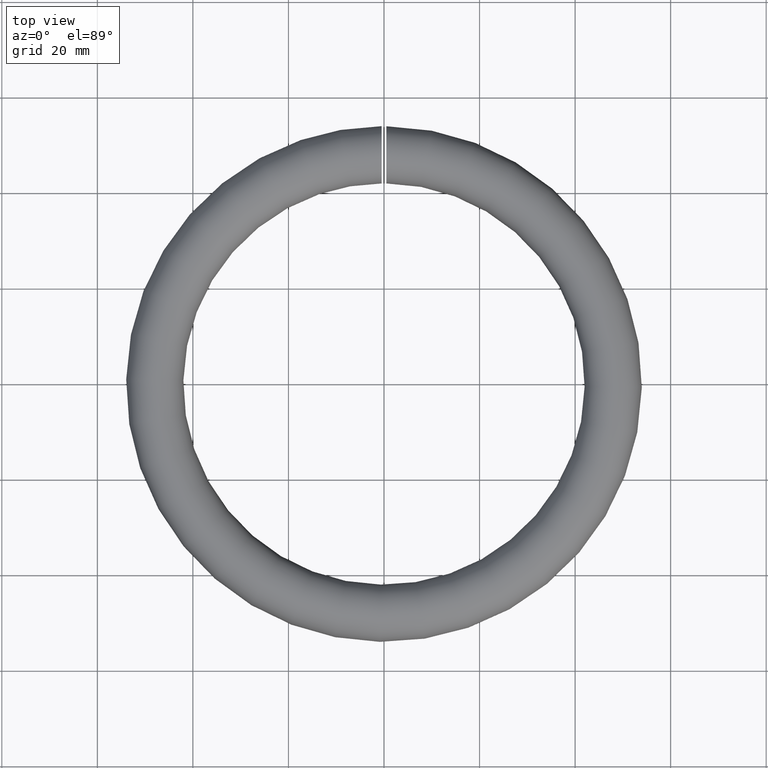
[diagram: clean part render]
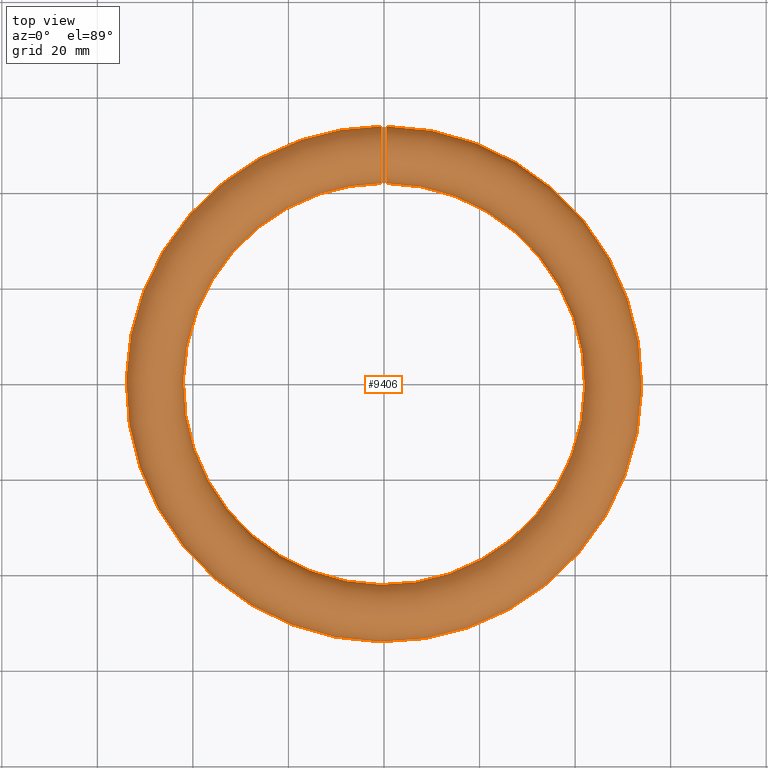
[diagram: same view with one face highlighted and labeled with its STEP entity id]
A machine part, top view. The second image highlights one B-rep face of the part: STEP entity #9406.
In plain terms, the highlighted toroidal blend (fillet) surface has major radius 48 mm and minor (blend) radius 6 mm.
Its self-contained STEP definition (entity closure, byte-faithful):
#46 = CARTESIAN_POINT ( 'NONE',  ( -0.4999999999999998900, 43.14301358841298400, -3.548935305719429100 ) ) ;
#92 = CARTESIAN_POINT ( 'NONE',  ( 0.5000000000000001100, 47.07987021014656600, -5.942343067271855800 ) ) ;
#128 = CARTESIAN_POINT ( 'NONE',  ( 0.5000000000000000000, 48.92092640781388700, 5.941396929851678400 ) ) ;
#168 = CARTESIAN_POINT ( 'NONE',  ( 0.5000000000000001100, 53.13334587488477500, -3.127150625172909300 ) ) ;
#198 = CARTESIAN_POINT ( 'NONE',  ( 0.5000000000000000000, 53.86589599565677800, -1.310308632446923500 ) ) ;
#230 = CARTESIAN_POINT ( 'NONE',  ( 0.4999999999999998900, 53.94197766748690300, 0.8387799097022394800 ) ) ;
#243 = ORIENTED_EDGE ( 'NONE', *, *, #438, .T. ) ;
#250 = CARTESIAN_POINT ( 'NONE',  ( -0.4999999999999998900, 44.88123695747643200, -5.142314771518775800 ) ) ;
#295 = CARTESIAN_POINT ( 'NONE',  ( -0.4999999999999998900, 52.91392091421100500, -3.445150536091677200 ) ) ;
#333 = CARTESIAN_POINT ( 'NONE',  ( -0.5000000000000000000, 53.22983944082128700, -2.943260673869156500 ) ) ;
#371 = CARTESIAN_POINT ( 'NONE',  ( -0.5000000000000000000, 43.56819923741991800, 4.066995888064344200 ) ) ;
#409 = CARTESIAN_POINT ( 'NONE',  ( -0.5000000000000000000, 51.44738861552011900, 4.924667876573747300 ) ) ;
#438 = EDGE_CURVE ( 'NONE', #7773, #7773, #4877, .T. ) ;
#856 = CARTESIAN_POINT ( 'NONE',  ( 0.4999999999999998900, 44.87728180184381400, -5.128820400686970900 ) ) ;
#927 = CARTESIAN_POINT ( 'NONE',  ( -0.4999999999999998900, 41.98987976272094600, -0.2607269188843543400 ) ) ;
#951 = FACE_OUTER_BOUND ( 'NONE', #8761, .T. ) ;
#964 = CARTESIAN_POINT ( 'NONE',  ( -0.4999999999999998900, 42.66840515462433100, 2.778428479248743300 ) ) ;
#971 = CARTESIAN_POINT ( 'NONE',  ( 0.5000000000000002200, 44.54767000088210700, -4.913202977284899300 ) ) ;
#1002 = EDGE_LOOP ( 'NONE', ( #243 ) ) ;
#1011 = CARTESIAN_POINT ( 'NONE',  ( 0.4999999999999996700, 51.54770593902862400, -4.852801359138823000 ) ) ;
#1048 = CARTESIAN_POINT ( 'NONE',  ( 0.4999999999999998900, 52.42763166699523900, -4.065570252330453500 ) ) ;
#1082 = CARTESIAN_POINT ( 'NONE',  ( 0.5000000000000000000, 49.41977067379738700, -5.832291564082732200 ) ) ;
#1119 = CARTESIAN_POINT ( 'NONE',  ( 0.5000000000000001100, 43.20238332301784100, 3.612313738947398700 ) ) ;
#1140 = CARTESIAN_POINT ( 'NONE',  ( -0.5000000000000000000, 53.64735988820179100, -2.057928835842074600 ) ) ;
#1161 = CARTESIAN_POINT ( 'NONE',  ( 0.5000000000000000000, 53.63697089731634500, -2.058427523300206700 ) ) ;
#1182 = CARTESIAN_POINT ( 'NONE',  ( -0.5000000000000000000, 53.06826291758442700, 3.231752764247573400 ) ) ;
#1200 = CARTESIAN_POINT ( 'NONE',  ( 0.5000000000000000000, 41.98923159459464200, -0.2481899549273053100 ) ) ;
#1221 = CARTESIAN_POINT ( 'NONE',  ( -0.5000000000000000000, 42.86594377259069000, 3.116074573703075900 ) ) ;
#1235 = FACE_OUTER_BOUND ( 'NONE', #1002, .T. ) ;
#1258 = CARTESIAN_POINT ( 'NONE',  ( -0.4999999999999998900, 50.71297420711604800, -5.353930723802287500 ) ) ;
#1304 = CARTESIAN_POINT ( 'NONE',  ( -0.4999999999999995600, 53.50176470932495200, -2.420569723429797400 ) ) ;
#1341 = CARTESIAN_POINT ( 'NONE',  ( -0.5000000000000000000, 43.39756550514064800, -3.852804271121346600 ) ) ;
#1648 = ORIENTED_EDGE ( 'NONE', *, *, #10966, .T. ) ;
#1746 = CARTESIAN_POINT ( 'NONE',  ( -0.5000000000000001100, 42.07491187124604400, -1.040325411671730600 ) ) ;
#1789 = CARTESIAN_POINT ( 'NONE',  ( -0.4999999999999998900, 42.15493462678729500, -1.422862444706441700 ) ) ;
#1828 = CARTESIAN_POINT ( 'NONE',  ( -0.5000000000000000000, 42.92253214411445600, -3.225166461874017000 ) ) ;
#1956 = CARTESIAN_POINT ( 'NONE',  ( 0.5000000000000001100, 53.83113809916831400, 1.417557774999541600 ) ) ;
#1991 = CARTESIAN_POINT ( 'NONE',  ( 0.5000000000000000000, 53.70112986453714400, -1.873176681268289100 ) ) ;
#2029 = CARTESIAN_POINT ( 'NONE',  ( 0.4999999999999998900, 48.83909873991291300, -5.943948063101706800 ) ) ;
#2062 = CARTESIAN_POINT ( 'NONE',  ( 0.5000000000000000000, 42.35087863588381700, 2.067422318984955900 ) ) ;
#2083 = CARTESIAN_POINT ( 'NONE',  ( -0.4999999999999998900, 52.15800220776835500, -4.341382835709115500 ) ) ;
#2101 = CARTESIAN_POINT ( 'NONE',  ( 0.4999999999999998900, 50.42963936022771100, 5.498864172864331900 ) ) ;
#2121 = CARTESIAN_POINT ( 'NONE',  ( -0.5000000000000001100, 43.93384938438747200, -4.432410017841951900 ) ) ;
#2164 = CARTESIAN_POINT ( 'NONE',  ( -0.4999999999999998900, 43.19710356611796000, 3.605405111517710400 ) ) ;
#2206 = CARTESIAN_POINT ( 'NONE',  ( -0.4999999999999998900, 51.12019823241684000, 5.138479527109098800 ) ) ;
#2224 = CARTESIAN_POINT ( 'NONE',  ( 0.5000000000000000000, 42.92092059983775000, -3.223235692431254900 ) ) ;
#2243 = CARTESIAN_POINT ( 'NONE',  ( -0.5000000000000000000, 48.26384246651999600, -6.006868952137669900 ) ) ;
#2725 = CARTESIAN_POINT ( 'NONE',  ( 0.4999999999999998900, 45.57208924826996800, -5.502110588330482200 ) ) ;
#2843 = CARTESIAN_POINT ( 'NONE',  ( 0.5000000000000002200, 43.93223240952833200, -4.430486709436009600 ) ) ;
#2885 = CARTESIAN_POINT ( 'NONE',  ( 0.4999999999999997800, 54.00918445325228800, -0.1367491795350983500 ) ) ;
#2928 = CARTESIAN_POINT ( 'NONE',  ( 0.5000000000000000000, 51.11803840247312500, 5.128468868608072400 ) ) ;
#2964 = CARTESIAN_POINT ( 'NONE',  ( 0.5000000000000001100, 50.94918979095984900, 5.227425656503838200 ) ) ;
#3000 = CARTESIAN_POINT ( 'NONE',  ( 0.5000000000000000000, 42.05553101421730800, 0.9230729816217733100 ) ) ;
#3021 = CARTESIAN_POINT ( 'NONE',  ( -0.5000000000000000000, 47.86424809939519800, -6.011297768830135400 ) ) ;
#3043 = CARTESIAN_POINT ( 'NONE',  ( 0.5000000000000000000, 43.57020766742184700, 4.068793574314097100 ) ) ;
#3068 = CARTESIAN_POINT ( 'NONE',  ( -0.5000000000000000000, 47.73639701614617800, 6.007057752758649700 ) ) ;
#3107 = CARTESIAN_POINT ( 'NONE',  ( -0.4999999999999998900, 44.44188716580551100, 4.849015287793321200 ) ) ;
#3142 = CARTESIAN_POINT ( 'NONE',  ( -0.5000000000000003300, 49.04267045478527400, -5.921231112895065400 ) ) ;
#3179 = CARTESIAN_POINT ( 'NONE',  ( -0.5000000000000000000, 45.40128920936231800, -5.412872062095631900 ) ) ;
#3223 = CARTESIAN_POINT ( 'NONE',  ( -0.5000000000000000000, 43.65211742186830400, -4.156673236523237900 ) ) ;
#3630 = CARTESIAN_POINT ( 'NONE',  ( 0.5000000000000002200, 43.39756550514065500, -3.852804271121347000 ) ) ;
#3832 = CARTESIAN_POINT ( 'NONE',  ( 0.5000000000000001100, 53.91149238825227700, 1.032263088732716400 ) ) ;
#3867 = CARTESIAN_POINT ( 'NONE',  ( 0.4999999999999997800, 45.93467448918106300, -5.647955018595306200 ) ) ;
#3903 = CARTESIAN_POINT ( 'NONE',  ( 0.5000000000000001100, 45.29118811777222200, 5.358685773277071200 ) ) ;
#3941 = CARTESIAN_POINT ( 'NONE',  ( 0.4999999999999998900, 52.14793733162160500, -4.350613190395085500 ) ) ;
#3961 = CARTESIAN_POINT ( 'NONE',  ( -0.5000000000000002200, 53.66163055727463400, 1.989406109798333100 ) ) ;
#3982 = CARTESIAN_POINT ( 'NONE',  ( 0.4999999999999998900, 47.85970050913543600, -6.011176548917892300 ) ) ;
#4004 = CARTESIAN_POINT ( 'NONE',  ( -0.5000000000000001100, 50.05067859331711600, 5.641204967625181900 ) ) ;
#4042 = CARTESIAN_POINT ( 'NONE',  ( -0.5000000000000001100, 53.43962725211088100, 2.534485260587367300 ) ) ;
#4085 = CARTESIAN_POINT ( 'NONE',  ( -0.5000000000000004400, 46.69951607206061800, -5.871187531955931700 ) ) ;
#4120 = CARTESIAN_POINT ( 'NONE',  ( -0.5000000000000000000, 49.86553497816903800, 5.705138993495048700 ) ) ;
#4452 = TOROIDAL_SURFACE ( 'NONE', #9686, 48.00000000000000000, 6.000000000000000000 ) ;
#4597 = CARTESIAN_POINT ( 'NONE',  ( -0.5000000000000003300, 42.55515654162336900, -2.534647918794680900 ) ) ;
#4637 = CARTESIAN_POINT ( 'NONE',  ( -0.4999999999999998900, 42.40065095232306200, -2.172343903551178900 ) ) ;
#4685 = CARTESIAN_POINT ( 'NONE',  ( -0.5000000000000002200, 41.98586946065229600, 0.1387487160022072800 ) ) ;
#4727 = CARTESIAN_POINT ( 'NONE',  ( 0.5000000000000000000, 53.48972417393313300, -2.424068706365886300 ) ) ;
#4760 = CARTESIAN_POINT ( 'NONE',  ( 0.5000000000000000000, 48.14164485109147800, 6.011007380344961100 ) ) ;
#4800 = CARTESIAN_POINT ( 'NONE',  ( 0.5000000000000003300, 49.03534456776211700, -5.912811488283781900 ) ) ;
#4842 = CARTESIAN_POINT ( 'NONE',  ( 0.4999999999999998900, 44.77643842122834900, 5.077357965667218300 ) ) ;
#4874 = CARTESIAN_POINT ( 'NONE',  ( 0.5000000000000001100, 50.52662945244041700, -5.444460924634757500 ) ) ;
#4877 = B_SPLINE_CURVE_WITH_KNOTS ( 'NONE', 3,
 ( #7352, #46, #1828, #5566, #4597, #4637, #11113, #1789, #1746, #927, #4685, #5525, #7481, #8289, #10143, #11155, #964, #1221, #7733, #2164, #371, #7648, #3107, #4976, #9633, #10485, #8631, #4894, #5929, #11366, #3068, #11448, #11527, #5850, #4120, #4004, #5813, #8753, #2206, #409, #8670, #6760, #10443, #1182, #6873, #4042, #5970, #3961, #4934, #11484, #5887, #11404, #6840, #10597, #1140, #1304, #333, #7769, #295, #9596, #10521, #2083, #5048, #7811, #1258, #8713, #9556, #6799, #8589, #3142, #2243, #3021, #5009, #4085, #10559, #9518, #7692, #3179, #250, #9670, #2121, #3223, #6132 ),
 .UNSPECIFIED., .T., .F.,
 ( 4, 2, 2, 2, 2, 2, 2, 2, 1, 2, 2, 2, 2, 2, 2, 2, 2, 2, 2, 2, 2, 2, 2, 2, 2, 2, 2, 2, 2, 2, 2, 2, 2, 2, 2, 2, 2, 2, 2, 2, 2, 4 ),
 ( 0.0000000000000000000, 0.001172322162664968900, 0.001758483243997448500, 0.002344644325329927800, 0.003516966487994886100, 0.004689288650659844400, 0.005861610813324802200, 0.006447771894657279400, 0.007033932975989754800, 0.007620094057322231200, 0.008206255138654706600, 0.009378577301319671400, 0.01055089946398463600, 0.01172322162664960100, 0.01230938270798207500, 0.01289554378931454700, 0.01406786595197946800, 0.01524018811464439100, 0.01582634919597684200, 0.01641251027730929200, 0.01758483243997418000, 0.01875715460263906500, 0.01992947676530395000, 0.02051563784663640000, 0.02110179892796884600, 0.02227412109063373400, 0.02344644325329862200, 0.02461876541596351400, 0.02579108757862840600, 0.02637724865996084200, 0.02696340974129328100, 0.02813573190395817600, 0.02930805406662306800, 0.02989421514795552500, 0.03048037622928797700, 0.03165269839195286600, 0.03282502055461775800, 0.03399734271728265000, 0.03458350379861508500, 0.03516966487994752100, 0.03634198704261238500, 0.03751430920527725600 ),
 .UNSPECIFIED. ) ;
#4894 = CARTESIAN_POINT ( 'NONE',  ( -0.4999999999999998900, 46.57394390908042000, 5.832053545818499900 ) ) ;
#4913 = CARTESIAN_POINT ( 'NONE',  ( 0.5000000000000001100, 42.08321707967022700, -1.032222248785173300 ) ) ;
#4934 = CARTESIAN_POINT ( 'NONE',  ( -0.5000000000000000000, 53.83778964245490100, 1.430319382856492200 ) ) ;
#4976 = CARTESIAN_POINT ( 'NONE',  ( -0.5000000000000000000, 44.77158175916160600, 5.074368953595918400 ) ) ;
#4994 = CARTESIAN_POINT ( 'NONE',  ( 0.5000000000000000000, 42.38805895387318400, -2.166088995373745400 ) ) ;
#5009 = CARTESIAN_POINT ( 'NONE',  ( -0.4999999999999998900, 47.08379467497598400, -5.942966627276607700 ) ) ;
#5048 = CARTESIAN_POINT ( 'NONE',  ( -0.5000000000000000000, 51.55190713566971500, -4.850077075301237000 ) ) ;
#5088 = CARTESIAN_POINT ( 'NONE',  ( 0.5000000000000000000, 43.39756550514064800, -3.852804271121346600 ) ) ;
#5304 = VERTEX_POINT ( 'NONE', #5088 ) ;
#5525 = CARTESIAN_POINT ( 'NONE',  ( -0.5000000000000000000, 42.05485151532182900, 0.9185630541118790000 ) ) ;
#5566 = CARTESIAN_POINT ( 'NONE',  ( -0.5000000000000000000, 42.64082767164457300, -2.710882945857117800 ) ) ;
#5649 = CARTESIAN_POINT ( 'NONE',  ( 0.5000000000000000000, 43.84561583891648700, 4.349859627545947100 ) ) ;
#5687 = CARTESIAN_POINT ( 'NONE',  ( 0.5000000000000001100, 53.78094184891472900, 1.610141629734676700 ) ) ;
#5721 = CARTESIAN_POINT ( 'NONE',  ( 0.4999999999999998900, 42.49703249980753100, 2.429983611900528900 ) ) ;
#5734 = DIRECTION ( 'NONE',  ( -0.0000000000000000000, -0.0000000000000000000, -1.000000000000000000 ) ) ;
#5753 = CARTESIAN_POINT ( 'NONE',  ( 0.5000000000000000000, 42.12997199103170900, 1.315699037533423000 ) ) ;
#5792 = CARTESIAN_POINT ( 'NONE',  ( 0.5000000000000001100, 43.08709616505808500, 3.454061971789051300 ) ) ;
#5813 = CARTESIAN_POINT ( 'NONE',  ( -0.4999999999999998900, 50.41592481348599400, 5.494546994032989900 ) ) ;
#5850 = CARTESIAN_POINT ( 'NONE',  ( -0.5000000000000004400, 49.30269865902460700, 5.869337819258808200 ) ) ;
#5887 = CARTESIAN_POINT ( 'NONE',  ( -0.5000000000000000000, 54.00512055423476500, 0.2586479367424877600 ) ) ;
#5929 = CARTESIAN_POINT ( 'NONE',  ( -0.4999999999999998900, 46.95973198593571900, 5.912885125031239800 ) ) ;
#5970 = CARTESIAN_POINT ( 'NONE',  ( -0.5000000000000001100, 53.59380430889713400, 2.172985869628573300 ) ) ;
#5987 = CARTESIAN_POINT ( 'NONE',  ( 0.5000000000000001100, 42.05224482480987500, -0.8356716004430671000 ) ) ;
#6132 = CARTESIAN_POINT ( 'NONE',  ( -0.5000000000000000000, 43.39756550514064800, -3.852804271121347000 ) ) ;
#6590 = CARTESIAN_POINT ( 'NONE',  ( 0.4999999999999998900, 52.91931975373982100, -3.454120778672787700 ) ) ;
#6629 = CARTESIAN_POINT ( 'NONE',  ( 0.5000000000000000000, 50.16540809885511700, -5.598100472491289300 ) ) ;
#6664 = CARTESIAN_POINT ( 'NONE',  ( 0.5000000000000001100, 53.45089187865666200, 2.532958989354817000 ) ) ;
#6701 = CARTESIAN_POINT ( 'NONE',  ( 0.5000000000000004400, 54.00495635012968900, 0.2558744750419145200 ) ) ;
#6739 = CARTESIAN_POINT ( 'NONE',  ( 0.5000000000000000000, 42.87144579378239900, 3.125140113363350300 ) ) ;
#6760 = CARTESIAN_POINT ( 'NONE',  ( -0.4999999999999997800, 52.34425361462199800, 4.154518909743758000 ) ) ;
#6799 = CARTESIAN_POINT ( 'NONE',  ( -0.4999999999999997800, 49.98868406769729200, -5.663387412776566900 ) ) ;
#6840 = CARTESIAN_POINT ( 'NONE',  ( -0.4999999999999998900, 53.94085030840617600, -0.9120258197991679700 ) ) ;
#6873 = CARTESIAN_POINT ( 'NONE',  ( -0.5000000000000000000, 53.35270776410050100, 2.713352534397127400 ) ) ;
#7321 = CARTESIAN_POINT ( 'NONE',  ( 0.5000000000000000000, 43.65211748502970600, -4.156673311921584200 ) ) ;
#7352 = CARTESIAN_POINT ( 'NONE',  ( -0.5000000000000000000, 43.39756550514064800, -3.852804271121347000 ) ) ;
#7358 = CARTESIAN_POINT ( 'NONE',  ( 0.5000000000000000000, 45.04897922232500900, -5.229389061509709600 ) ) ;
#7481 = CARTESIAN_POINT ( 'NONE',  ( -0.5000000000000000000, 42.12693905323151700, 1.302937205071709200 ) ) ;
#7522 = CARTESIAN_POINT ( 'NONE',  ( 0.5000000000000000000, 46.68728656820719200, -5.868350550130707600 ) ) ;
#7560 = CARTESIAN_POINT ( 'NONE',  ( 0.5000000000000000000, 52.34718845325942000, 4.151446580321915800 ) ) ;
#7573 = CARTESIAN_POINT ( 'NONE',  ( 0.0000000000000000000, 0.0000000000000000000, 0.0000000000000000000 ) ) ;
#7596 = CARTESIAN_POINT ( 'NONE',  ( 0.4999999999999998900, 53.93906285832525800, -0.9256453535642874500 ) ) ;
#7631 = CARTESIAN_POINT ( 'NONE',  ( 0.5000000000000001100, 42.77067415315952600, 2.953554617036074700 ) ) ;
#7648 = CARTESIAN_POINT ( 'NONE',  ( -0.5000000000000001100, 43.84217918493401100, 4.346186285936196800 ) ) ;
#7668 = CARTESIAN_POINT ( 'NONE',  ( 0.5000000000000001100, 47.74251427282884900, 6.007420061256669700 ) ) ;
#7692 = CARTESIAN_POINT ( 'NONE',  ( -0.4999999999999998900, 45.57915696098086800, -5.494674471722487600 ) ) ;
#7733 = CARTESIAN_POINT ( 'NONE',  ( -0.5000000000000001100, 43.08057200104840900, 3.444747847024272100 ) ) ;
#7769 = CARTESIAN_POINT ( 'NONE',  ( -0.5000000000000000000, 53.12957609680334800, -3.114837006380203600 ) ) ;
#7773 = VERTEX_POINT ( 'NONE', #1341 ) ;
#7789 = CARTESIAN_POINT ( 'NONE',  ( 0.4999999999999998900, 42.54140416495727800, -2.528343585201919800 ) ) ;
#7811 = CARTESIAN_POINT ( 'NONE',  ( -0.5000000000000001100, 51.22690531304846200, -5.071889308394894200 ) ) ;
#8254 = CARTESIAN_POINT ( 'NONE',  ( 0.5000000000000001100, 44.38917957078438500, -4.797968848523501300 ) ) ;
#8289 = CARTESIAN_POINT ( 'NONE',  ( -0.5000000000000000000, 42.29281203863324400, 1.871000681393240100 ) ) ;
#8455 = CARTESIAN_POINT ( 'NONE',  ( 0.4999999999999997800, 53.07503622520844300, 3.220822962522481800 ) ) ;
#8499 = CARTESIAN_POINT ( 'NONE',  ( 0.5000000000000000000, 49.79834888282285700, -5.733344551316423400 ) ) ;
#8529 = CARTESIAN_POINT ( 'NONE',  ( 0.5000000000000001100, 51.22477866523146200, -5.073554662235096700 ) ) ;
#8569 = CARTESIAN_POINT ( 'NONE',  ( 0.5000000000000003300, 48.25075803185576000, -6.007615335162768100 ) ) ;
#8589 = CARTESIAN_POINT ( 'NONE',  ( -0.5000000000000001100, 49.42524509313318500, -5.840937672664265000 ) ) ;
#8610 = CARTESIAN_POINT ( 'NONE',  ( 0.5000000000000000000, 44.45273199531747800, 4.857297486272399200 ) ) ;
#8631 = CARTESIAN_POINT ( 'NONE',  ( -0.5000000000000001100, 46.38154090361185000, 5.781688482349187200 ) ) ;
#8670 = CARTESIAN_POINT ( 'NONE',  ( -0.4999999999999998900, 52.05872428343254700, 4.434056874135207800 ) ) ;
#8691 = CARTESIAN_POINT ( 'NONE',  ( 0.5000000000000000000, 42.16349486785073000, -1.417204248991012400 ) ) ;
#8713 = CARTESIAN_POINT ( 'NONE',  ( -0.4999999999999998900, 50.53694925862291100, -5.439669588175729800 ) ) ;
#8735 = CARTESIAN_POINT ( 'NONE',  ( 0.5000000000000000000, 42.21285115394143600, -1.606659781646096100 ) ) ;
#8753 = CARTESIAN_POINT ( 'NONE',  ( -0.5000000000000000000, 50.59672628188773300, 5.411367174105875800 ) ) ;
#8761 = EDGE_LOOP ( 'NONE', ( #1648 ) ) ;
#9361 = DIRECTION ( 'NONE',  ( -1.000000000000000000, 0.0000000000000000000, 0.0000000000000000000 ) ) ;
#9386 = CARTESIAN_POINT ( 'NONE',  ( 0.4999999999999998900, 53.40639415828852100, -2.604650982223658800 ) ) ;
#9406 = ADVANCED_FACE ( 'NONE', ( #951, #1235 ), #4452, .T. ) ;
#9426 = CARTESIAN_POINT ( 'NONE',  ( 0.5000000000000000000, 46.01719822324994900, 5.667259319706063900 ) ) ;
#9467 = CARTESIAN_POINT ( 'NONE',  ( 0.5000000000000000000, 46.57947367246681800, 5.843285786726531800 ) ) ;
#9501 = CARTESIAN_POINT ( 'NONE',  ( 0.5000000000000001100, 50.70523132528885700, -5.357924434240895400 ) ) ;
#9518 = CARTESIAN_POINT ( 'NONE',  ( -0.5000000000000002200, 45.94409671340089600, -5.641196611905573200 ) ) ;
#9536 = CARTESIAN_POINT ( 'NONE',  ( 0.5000000000000000000, 45.46767195322458800, 5.444275096905360400 ) ) ;
#9556 = CARTESIAN_POINT ( 'NONE',  ( -0.5000000000000000000, 50.17528833241765100, -5.594278221478304200 ) ) ;
#9596 = CARTESIAN_POINT ( 'NONE',  ( -0.5000000000000001100, 52.79870184817596600, -3.603882210219450300 ) ) ;
#9633 = CARTESIAN_POINT ( 'NONE',  ( -0.5000000000000000000, 45.45979062024878900, 5.451163537201674500 ) ) ;
#9650 = CARTESIAN_POINT ( 'NONE',  ( 0.5000000000000000000, 41.98594319384356800, 0.1427194936313437600 ) ) ;
#9670 = CARTESIAN_POINT ( 'NONE',  ( -0.5000000000000002200, 44.55145944843566500, -4.927841468364905000 ) ) ;
#9686 = AXIS2_PLACEMENT_3D ( 'NONE', #7573, #5734, #9361 ) ;
#9688 = CARTESIAN_POINT ( 'NONE',  ( 0.5000000000000002200, 43.39756550514065500, -3.852804271121347000 ) ) ;
#10143 = CARTESIAN_POINT ( 'NONE',  ( -0.4999999999999998900, 42.35788623235237800, 2.058739337923835200 ) ) ;
#10313 = CARTESIAN_POINT ( 'NONE',  ( 0.5000000000000000000, 51.44691731964106700, 4.913310173863030700 ) ) ;
#10353 = CARTESIAN_POINT ( 'NONE',  ( 0.5000000000000002200, 45.83069959906269000, 5.598648238924242000 ) ) ;
#10383 = CARTESIAN_POINT ( 'NONE',  ( 0.5000000000000000000, 52.84987320391072500, 3.550930278605485000 ) ) ;
#10424 = CARTESIAN_POINT ( 'NONE',  ( 0.4999999999999996700, 53.60404136197424000, 2.173354086459735600 ) ) ;
#10443 = CARTESIAN_POINT ( 'NONE',  ( -0.4999999999999998900, 52.84735931213968000, 3.554362427629584000 ) ) ;
#10485 = CARTESIAN_POINT ( 'NONE',  ( -0.5000000000000003300, 45.81923505659965900, 5.604517535997522300 ) ) ;
#10521 = CARTESIAN_POINT ( 'NONE',  ( -0.4999999999999998900, 52.43144013159506000, -4.061297354940255600 ) ) ;
#10540 = CARTESIAN_POINT ( 'NONE',  ( 0.5000000000000003300, 43.14301352525160400, -3.548935230321110800 ) ) ;
#10559 = CARTESIAN_POINT ( 'NONE',  ( -0.5000000000000000000, 46.13217079270550900, -5.706147144961455800 ) ) ;
#10597 = CARTESIAN_POINT ( 'NONE',  ( -0.5000000000000002200, 53.86732566120547000, -1.304346980439554700 ) ) ;
#10966 = EDGE_CURVE ( 'NONE', #5304, #5304, #11564, .T. ) ;
#11113 = CARTESIAN_POINT ( 'NONE',  ( -0.5000000000000002200, 42.33173552833385100, -1.985676561566101800 ) ) ;
#11155 = CARTESIAN_POINT ( 'NONE',  ( -0.5000000000000000000, 42.50458636446740000, 2.423077944794053800 ) ) ;
#11199 = CARTESIAN_POINT ( 'NONE',  ( 0.5000000000000000000, 50.06394806150886700, 5.646766343774559400 ) ) ;
#11236 = CARTESIAN_POINT ( 'NONE',  ( 0.5000000000000000000, 46.96202832831149000, 5.923021708029018000 ) ) ;
#11265 = CARTESIAN_POINT ( 'NONE',  ( 0.5000000000000001100, 51.60778036688867600, 4.796382550882084300 ) ) ;
#11304 = CARTESIAN_POINT ( 'NONE',  ( 0.5000000000000000000, 52.06829258398772700, 4.425476841442202800 ) ) ;
#11346 = CARTESIAN_POINT ( 'NONE',  ( 0.5000000000000000000, 49.30545054547569400, 5.869015034815518600 ) ) ;
#11366 = CARTESIAN_POINT ( 'NONE',  ( -0.5000000000000001100, 47.15336055525226300, 5.943559298878903400 ) ) ;
#11404 = CARTESIAN_POINT ( 'NONE',  ( -0.5000000000000001100, 54.00896228904179000, -0.1326090226716985000 ) ) ;
#11448 = CARTESIAN_POINT ( 'NONE',  ( -0.5000000000000004400, 48.12793466574237300, 6.011636407463840600 ) ) ;
#11484 = CARTESIAN_POINT ( 'NONE',  ( -0.5000000000000002200, 53.91929456706576200, 1.044354882145452200 ) ) ;
#11527 = CARTESIAN_POINT ( 'NONE',  ( -0.5000000000000000000, 48.91692572708284100, 5.942336728014559800 ) ) ;
#11564 = B_SPLINE_CURVE_WITH_KNOTS ( 'NONE', 3,
 ( #3630, #7321, #2843, #8254, #971, #856, #7358, #2725, #3867, #7522, #92, #3982, #8569, #2029, #4800, #1082, #8499, #6629, #4874, #9501, #8529, #1011, #3941, #1048, #6590, #168, #9386, #4727, #1161, #1991, #198, #7596, #2885, #6701, #230, #3832, #1956, #5687, #10424, #6664, #8455, #10383, #7560, #11304, #11265, #10313, #2928, #2964, #2101, #11199, #11346, #128, #4760, #7668, #11236, #9467, #9426, #10353, #9536, #3903, #4842, #8610, #5649, #3043, #1119, #5792, #6739, #7631, #5721, #2062, #5753, #3000, #9650, #1200, #5987, #4913, #8691, #8735, #4994, #7789, #2224, #10540, #9688 ),
 .UNSPECIFIED., .T., .F.,
 ( 4, 2, 2, 2, 2, 2, 2, 2, 1, 2, 2, 2, 2, 2, 2, 2, 2, 2, 2, 2, 2, 2, 2, 2, 2, 2, 2, 2, 2, 2, 2, 2, 2, 2, 2, 2, 2, 2, 2, 2, 2, 4 ),
 ( 0.0000000000000000000, 0.001172320782141766200, 0.001758481173212649200, 0.002344641564283532400, 0.003516962346425278900, 0.004689283128567024900, 0.005861603910708771400, 0.006447764301779643700, 0.007033924692850517000, 0.007620085083921389300, 0.008206245474992261700, 0.009378566257134008200, 0.01055088703927575500, 0.01172320782141749900, 0.01230936821248837200, 0.01289552860355924400, 0.01406784938570099200, 0.01524017016784273900, 0.01582633055891361300, 0.01641249094998448500, 0.01758481173212622700, 0.01875713251426796800, 0.01992945329640970900, 0.02051561368748057800, 0.02110177407855145000, 0.02227409486069318800, 0.02344641564283492200, 0.02461873642497666000, 0.02579105720711839800, 0.02637721759818927700, 0.02696337798926015700, 0.02813569877140191200, 0.02930801955354367000, 0.02989417994461455000, 0.03048034033568542900, 0.03165266111782718400, 0.03282498189996894300, 0.03399730268211070100, 0.03458346307318158100, 0.03516962346425246000, 0.03634194424639422500, 0.03751426502853598400 ),
 .UNSPECIFIED. ) ;